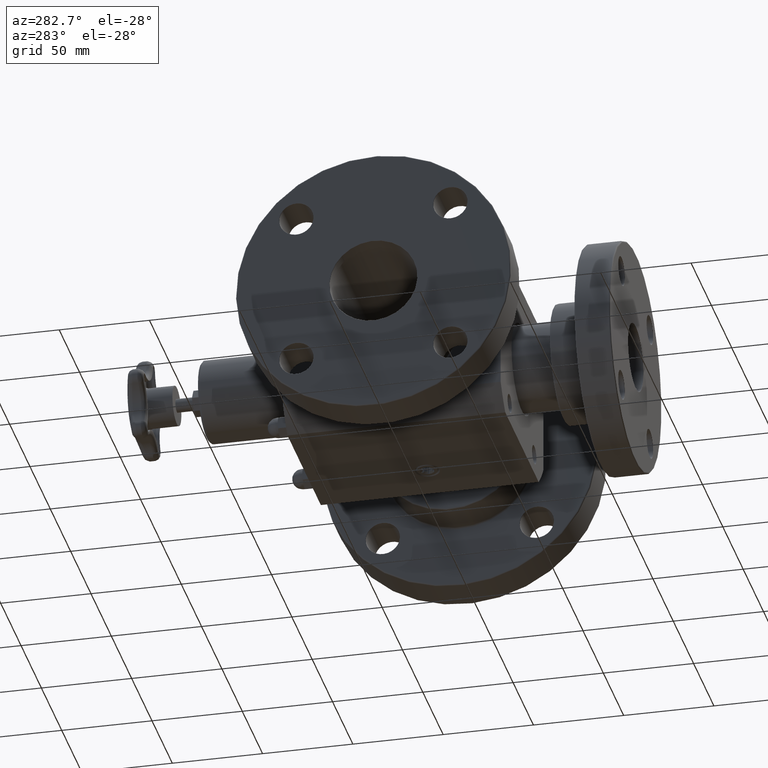
[diagram: clean part render]
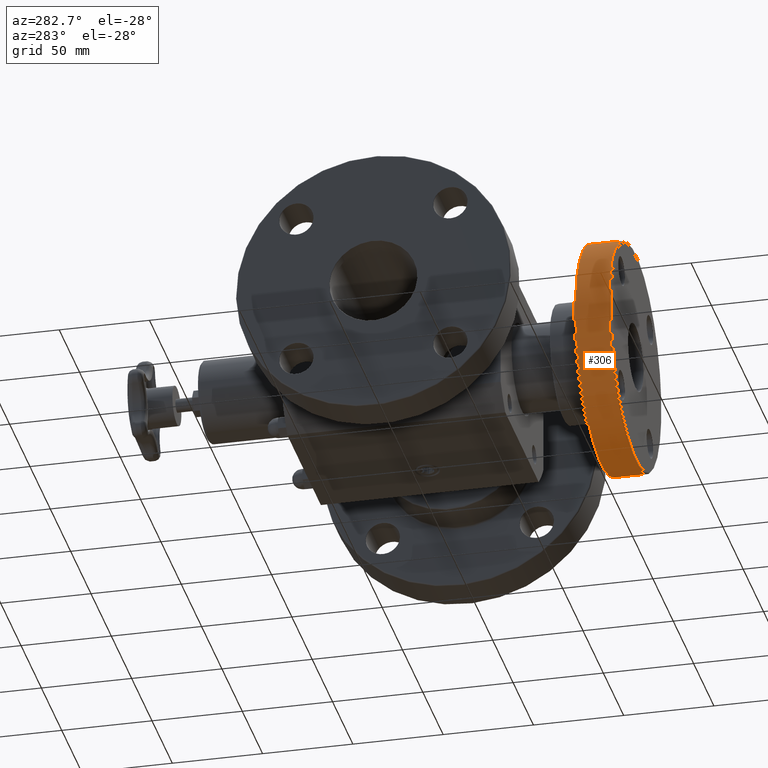
[diagram: same view with one face highlighted and labeled with its STEP entity id]
A machine part, auxiliary view. The second image highlights one B-rep face of the part: STEP entity #306.
In plain terms, the highlighted cylindrical surface (bore or boss wall) has radius 63.5 mm, axis along (0, 1, 0).
Its self-contained STEP definition (entity closure, byte-faithful):
#275=CARTESIAN_POINT('',(-1.767766952966369,-2.452000000000001,-1.767766952966370));
#276=VERTEX_POINT('',#275);
#277=CARTESIAN_POINT('',(1.080716E-016,-2.452000000000002,-1.018159E-015));
#278=DIRECTION('',(-2.672218E-016,-1.0,-2.672218E-016));
#279=DIRECTION('',(0.707106781186547,-3.779087E-016,0.707106781186548));
#280=AXIS2_PLACEMENT_3D('',#277,#278,#279);
#281=CIRCLE('',#280,2.500000000000000);
#282=EDGE_CURVE('',#276,#276,#281,.T.);
#287=CARTESIAN_POINT('',(1.213322E-016,-2.092000000000002,-8.395465E-016));
#288=DIRECTION('',(3.683505E-017,1.0,4.961461E-016));
#289=DIRECTION('',(-0.707106781186548,3.471906E-016,-0.707106781186547));
#290=AXIS2_PLACEMENT_3D('',#287,#288,#289);
#291=CYLINDRICAL_SURFACE('',#290,2.500000000000000);
#292=CARTESIAN_POINT('',(-1.767766952966369,-1.732000000000001,-1.767766952966369));
#293=VERTEX_POINT('',#292);
#294=CARTESIAN_POINT('',(1.345928E-016,-1.732000000000002,-6.609339E-016));
#295=DIRECTION('',(2.672218E-016,1.0,2.672218E-016));
#296=DIRECTION('',(0.707106781186547,-3.779087E-016,0.707106781186548));
#297=AXIS2_PLACEMENT_3D('',#294,#295,#296);
#298=CIRCLE('',#297,2.500000000000000);
#299=EDGE_CURVE('',#293,#293,#298,.T.);
#300=ORIENTED_EDGE('',*,*,#299,.F.);
#301=EDGE_LOOP('',(#300));
#302=FACE_OUTER_BOUND('',#301,.T.);
#303=ORIENTED_EDGE('',*,*,#282,.F.);
#304=EDGE_LOOP('',(#303));
#305=FACE_BOUND('',#304,.T.);
#306=ADVANCED_FACE('',(#302,#305),#291,.T.);